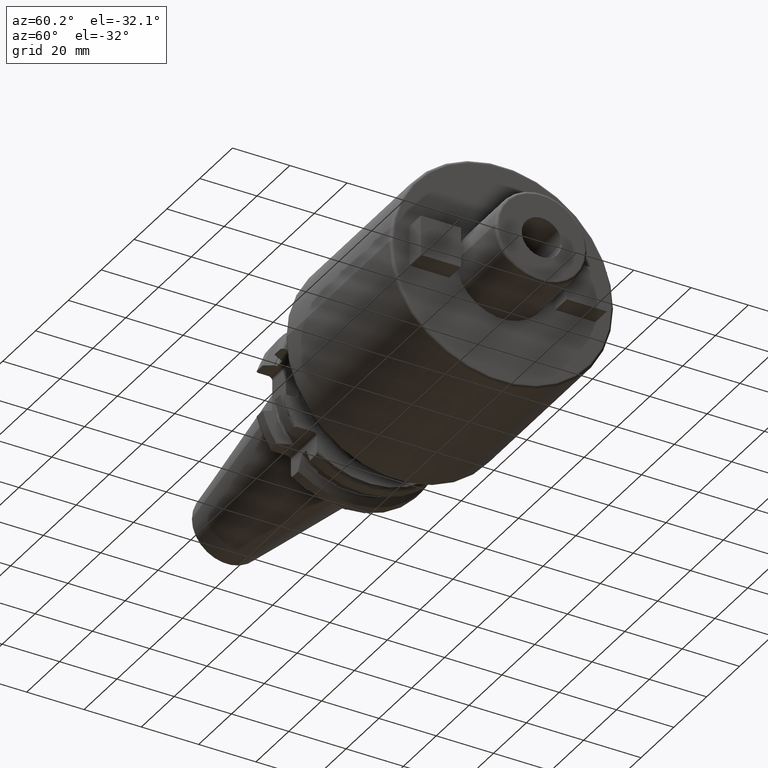
[diagram: clean part render]
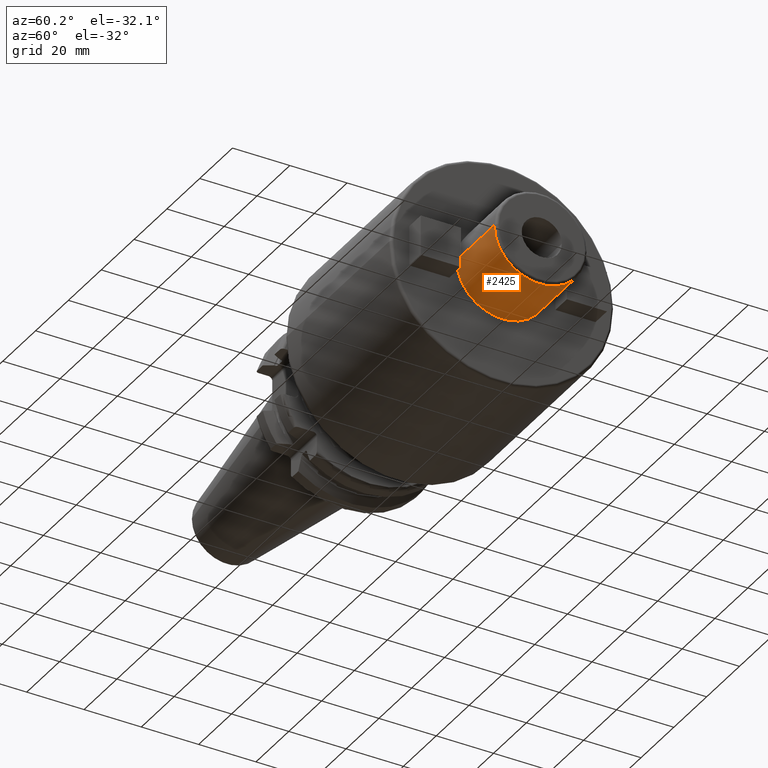
[diagram: same view with one face highlighted and labeled with its STEP entity id]
A machine part, auxiliary view. The second image highlights one B-rep face of the part: STEP entity #2425.
In plain terms, the highlighted cylindrical surface (partial cylindrical patch) has radius 16 mm, axis along (1, 0, 0).
Its self-contained STEP definition (entity closure, byte-faithful):
#420=CARTESIAN_POINT('',(1.E2,0.E0,0.E0));
#421=DIRECTION('',(-1.E0,0.E0,0.E0));
#422=DIRECTION('',(0.E0,1.E0,0.E0));
#423=AXIS2_PLACEMENT_3D('',#420,#421,#422);
#472=DIRECTION('',(-1.E0,0.E0,1.882010973825E-14));
#473=VECTOR('',#472,2.3E1);
#474=CARTESIAN_POINT('',(1.23E2,1.6E1,-4.315562340607E-13));
#475=LINE('',#474,#473);
#476=DIRECTION('',(-1.E0,0.E0,-1.879881153305E-14));
#477=VECTOR('',#476,2.3E1);
#478=CARTESIAN_POINT('',(1.23E2,-1.6E1,4.310663753411E-13));
#479=LINE('',#478,#477);
#480=CARTESIAN_POINT('',(1.23E2,0.E0,0.E0));
#481=DIRECTION('',(-1.E0,0.E0,0.E0));
#482=DIRECTION('',(0.E0,1.E0,0.E0));
#483=AXIS2_PLACEMENT_3D('',#480,#481,#482);
#1750=CARTESIAN_POINT('',(1.E2,1.6E1,0.E0));
#1751=CARTESIAN_POINT('',(1.E2,-1.6E1,0.E0));
#1752=VERTEX_POINT('',#1750);
#1753=VERTEX_POINT('',#1751);
#1768=CARTESIAN_POINT('',(1.23E2,1.6E1,-4.315562340607E-13));
#1769=VERTEX_POINT('',#1768);
#1770=CARTESIAN_POINT('',(1.23E2,-1.6E1,4.310663753411E-13));
#1771=VERTEX_POINT('',#1770);
#2413=CARTESIAN_POINT('',(1.38025E1,0.E0,0.E0));
#2414=DIRECTION('',(1.E0,0.E0,0.E0));
#2415=DIRECTION('',(0.E0,-1.E0,0.E0));
#2416=AXIS2_PLACEMENT_3D('',#2413,#2414,#2415);
#2417=CYLINDRICAL_SURFACE('',#2416,1.6E1);
#2418=ORIENTED_EDGE('',*,*,#2403,.T.);
#2419=ORIENTED_EDGE('',*,*,#2373,.T.);
#2420=ORIENTED_EDGE('',*,*,#2407,.F.);
#2422=ORIENTED_EDGE('',*,*,#2421,.F.);
#2423=EDGE_LOOP('',(#2418,#2419,#2420,#2422));
#2424=FACE_OUTER_BOUND('',#2423,.F.);
#2425=ADVANCED_FACE('',(#2424),#2417,.T.);
#424=CIRCLE('',#423,1.6E1);
#484=CIRCLE('',#483,1.6E1);
#2373=EDGE_CURVE('',#1752,#1753,#424,.T.);
#2403=EDGE_CURVE('',#1769,#1752,#475,.T.);
#2407=EDGE_CURVE('',#1771,#1753,#479,.T.);
#2421=EDGE_CURVE('',#1769,#1771,#484,.T.);